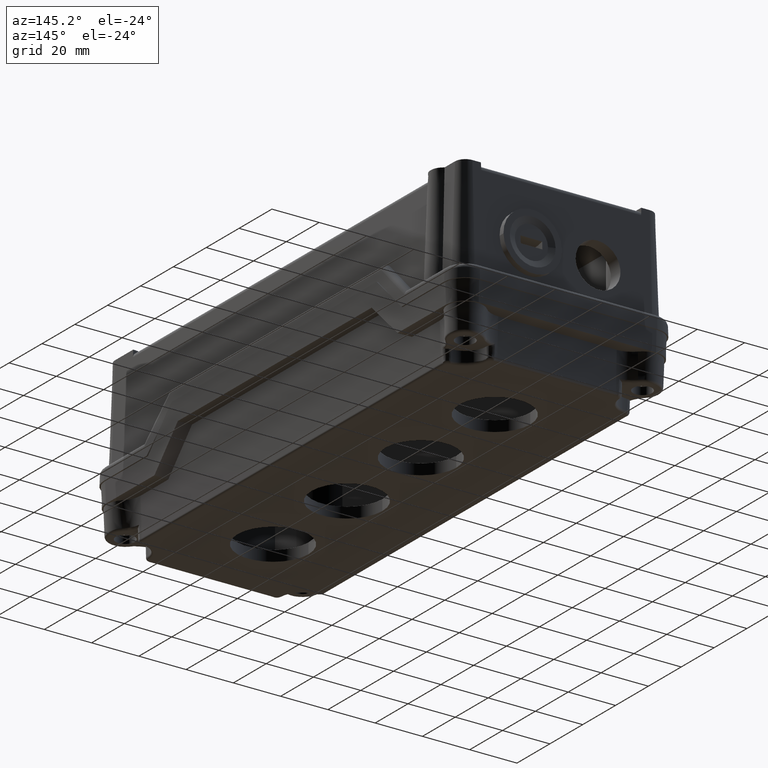
[diagram: clean part render]
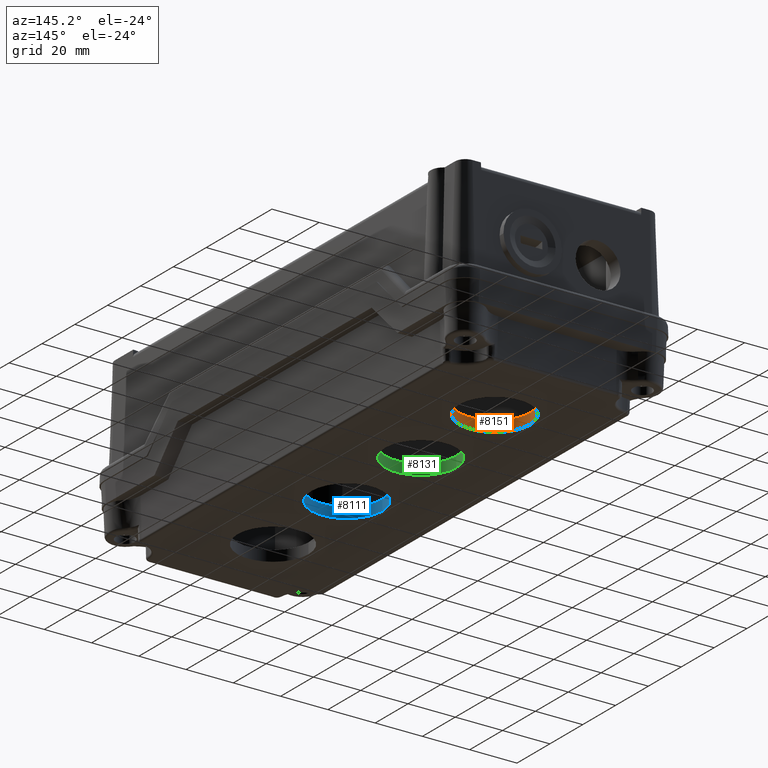
[diagram: same view with three faces highlighted in distinct colors, each labeled with its STEP entity id]
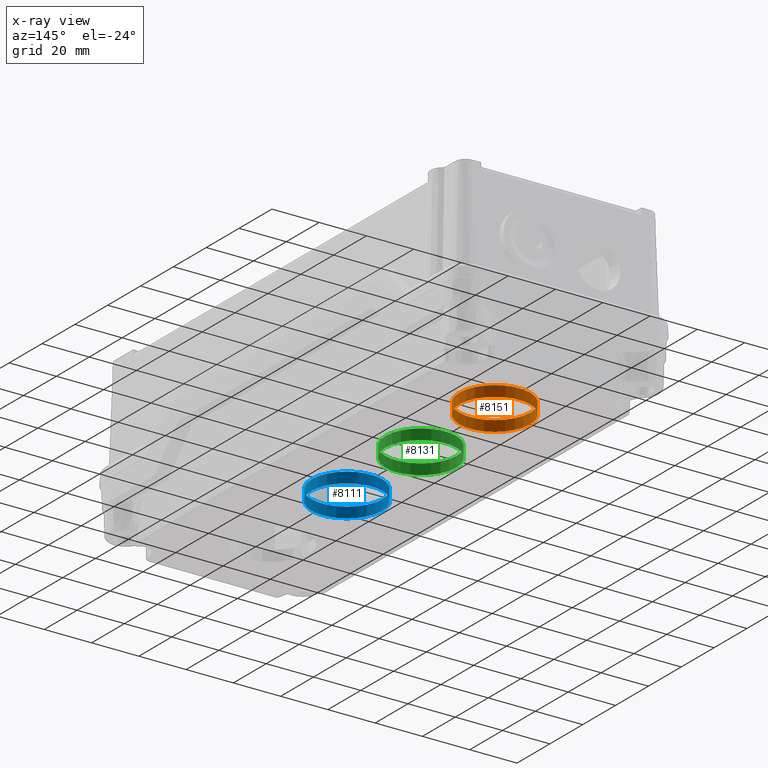
[diagram: x-ray of the same camera — body ghosted, the three highlighted faces saturated]
A machine part, auxiliary view with three faces highlighted in distinct colors.
The next image is the same camera in x-ray (body ghosted, the three faces saturated) — at least one of them is partly hidden behind the body in this view.
Their STEP definitions:

[orange] entity #8151 — the highlighted cylindrical surface (bore or boss wall) has radius 15 mm, axis along (0, -0, 1).
#8027=CARTESIAN_POINT('',(52.783278526198750,103.702105119166930,40.500000000000000));
#8028=VERTEX_POINT('',#8027);
#8029=CARTESIAN_POINT('',(37.783278526198750,103.702105119166930,40.500000000000000));
#8030=DIRECTION('',(0.0,0.0,-1.0));
#8031=DIRECTION('',(-1.0,0.0,0.0));
#8032=AXIS2_PLACEMENT_3D('',#8029,#8030,#8031);
#8033=CIRCLE('',#8032,15.0);
#8034=EDGE_CURVE('',#8028,#8028,#8033,.T.);
#8132=CARTESIAN_POINT('',(37.783278526198750,103.702105119166930,40.500000000000000));
#8133=DIRECTION('',(0.0,0.0,-1.0));
#8134=DIRECTION('',(-1.0,0.0,0.0));
#8135=AXIS2_PLACEMENT_3D('',#8132,#8133,#8134);
#8136=CYLINDRICAL_SURFACE('',#8135,15.0);
#8137=CARTESIAN_POINT('',(52.783278526198750,103.702105119166930,36.0));
#8138=VERTEX_POINT('',#8137);
#8139=CARTESIAN_POINT('',(37.783278526198750,103.702105119166930,36.0));
#8140=DIRECTION('',(0.0,0.0,1.0));
#8141=DIRECTION('',(-1.0,0.0,0.0));
#8142=AXIS2_PLACEMENT_3D('',#8139,#8140,#8141);
#8143=CIRCLE('',#8142,15.0);
#8144=EDGE_CURVE('',#8138,#8138,#8143,.T.);
#8145=ORIENTED_EDGE('',*,*,#8144,.F.);
#8146=EDGE_LOOP('',(#8145));
#8147=FACE_OUTER_BOUND('',#8146,.T.);
#8148=ORIENTED_EDGE('',*,*,#8034,.F.);
#8149=EDGE_LOOP('',(#8148));
#8150=FACE_BOUND('',#8149,.T.);
#8151=ADVANCED_FACE('',(#8147,#8150),#8136,.F.);

[blue] entity #8111 — the highlighted cylindrical surface (bore or boss wall) has radius 15 mm, axis along (0, -0, 1).
#8049=CARTESIAN_POINT('',(52.783278526198771,13.702105119166925,40.500000000000000));
#8050=VERTEX_POINT('',#8049);
#8051=CARTESIAN_POINT('',(37.783278526198771,13.702105119166923,40.500000000000000));
#8052=DIRECTION('',(0.0,0.0,-1.0));
#8053=DIRECTION('',(-1.0,0.0,0.0));
#8054=AXIS2_PLACEMENT_3D('',#8051,#8052,#8053);
#8055=CIRCLE('',#8054,15.0);
#8056=EDGE_CURVE('',#8050,#8050,#8055,.T.);
#8092=CARTESIAN_POINT('',(37.783278526198771,13.702105119166923,40.500000000000000));
#8093=DIRECTION('',(0.0,0.0,-1.0));
#8094=DIRECTION('',(-1.0,0.0,0.0));
#8095=AXIS2_PLACEMENT_3D('',#8092,#8093,#8094);
#8096=CYLINDRICAL_SURFACE('',#8095,15.0);
#8097=CARTESIAN_POINT('',(52.783278526198771,13.702105119166925,36.0));
#8098=VERTEX_POINT('',#8097);
#8099=CARTESIAN_POINT('',(37.783278526198771,13.702105119166923,36.0));
#8100=DIRECTION('',(0.0,0.0,1.0));
#8101=DIRECTION('',(-1.0,0.0,0.0));
#8102=AXIS2_PLACEMENT_3D('',#8099,#8100,#8101);
#8103=CIRCLE('',#8102,15.0);
#8104=EDGE_CURVE('',#8098,#8098,#8103,.T.);
#8105=ORIENTED_EDGE('',*,*,#8104,.F.);
#8106=EDGE_LOOP('',(#8105));
#8107=FACE_OUTER_BOUND('',#8106,.T.);
#8108=ORIENTED_EDGE('',*,*,#8056,.F.);
#8109=EDGE_LOOP('',(#8108));
#8110=FACE_BOUND('',#8109,.T.);
#8111=ADVANCED_FACE('',(#8107,#8110),#8096,.F.);

[green] entity #8131 — the highlighted cylindrical surface (bore or boss wall) has radius 15 mm, axis along (0, -0, 1).
#8038=CARTESIAN_POINT('',(52.783278526198757,58.702105119166923,40.500000000000000));
#8039=VERTEX_POINT('',#8038);
#8040=CARTESIAN_POINT('',(37.783278526198757,58.702105119166923,40.500000000000000));
#8041=DIRECTION('',(0.0,0.0,-1.0));
#8042=DIRECTION('',(-1.0,0.0,0.0));
#8043=AXIS2_PLACEMENT_3D('',#8040,#8041,#8042);
#8044=CIRCLE('',#8043,15.0);
#8045=EDGE_CURVE('',#8039,#8039,#8044,.T.);
#8112=CARTESIAN_POINT('',(37.783278526198757,58.702105119166923,40.500000000000000));
#8113=DIRECTION('',(0.0,0.0,-1.0));
#8114=DIRECTION('',(-1.0,0.0,0.0));
#8115=AXIS2_PLACEMENT_3D('',#8112,#8113,#8114);
#8116=CYLINDRICAL_SURFACE('',#8115,15.0);
#8117=CARTESIAN_POINT('',(52.783278526198757,58.702105119166923,36.0));
#8118=VERTEX_POINT('',#8117);
#8119=CARTESIAN_POINT('',(37.783278526198757,58.702105119166923,36.0));
#8120=DIRECTION('',(0.0,0.0,1.0));
#8121=DIRECTION('',(-1.0,0.0,0.0));
#8122=AXIS2_PLACEMENT_3D('',#8119,#8120,#8121);
#8123=CIRCLE('',#8122,15.0);
#8124=EDGE_CURVE('',#8118,#8118,#8123,.T.);
#8125=ORIENTED_EDGE('',*,*,#8124,.F.);
#8126=EDGE_LOOP('',(#8125));
#8127=FACE_OUTER_BOUND('',#8126,.T.);
#8128=ORIENTED_EDGE('',*,*,#8045,.F.);
#8129=EDGE_LOOP('',(#8128));
#8130=FACE_BOUND('',#8129,.T.);
#8131=ADVANCED_FACE('',(#8127,#8130),#8116,.F.);